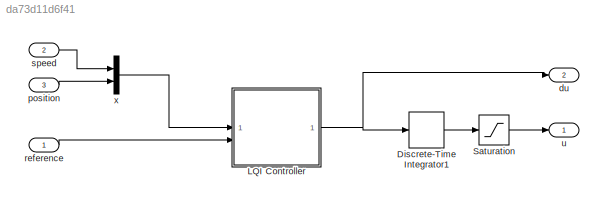
MODEL slx_da73d11d6f41
KIND model
CONFIG AbsTol = auto
CONFIG EnableMultiTasking = on
CONFIG FixedStep = auto
CONFIG MaxStep = auto
CONFIG MinStep = auto
CONFIG RelTol = 1e-3
CONFIG SampleTimeConstraint = Unconstrained
CONFIG SolverName = FixedStepAuto
CONFIG StartTime = 0.0
CONFIG StopTime = 10.0
BLOCK [DiscreteIntegrator] Discrete-Time Integrator1
  ICPrevOutput = DiscIntNeverNeededParam
  ICPrevScaledInput = DiscIntNeverNeededParam
  InitialConditionSetting = Auto
  IntegratorMethod = Accumulation: Backward Euler
  LimitOutput = on
  LowerSaturationLimit = -12
  SampleTime = -1
  UpperSaturationLimit = 12
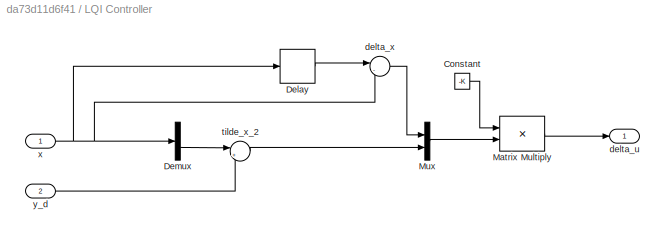
BLOCK [SubSystem] LQI Controller
BLOCK [Constant] LQI Controller/Constant
  Value = -K
  VectorParams1D = off
BLOCK [Delay] LQI Controller/Delay
  DelayLength = 1
  InitialCondition = [0;0]
  InputPortMap = u0
  SampleTime = Ts
BLOCK [Demux] LQI Controller/Demux
  Outputs = 2
BLOCK [Product] LQI Controller/Matrix Multiply
  Multiplication = Matrix(*)
BLOCK [Mux] LQI Controller/Mux
  DisplayOption = bar
  Inputs = 2
BLOCK [Outport] LQI Controller/delta_u
  SampleTime = Ts
BLOCK [Sum] LQI Controller/delta_x
  Inputs = |-+
  NameLocation = top
BLOCK [Sum] LQI Controller/tilde_x_2
  Inputs = |+-
  NameLocation = top
BLOCK [Inport] LQI Controller/x
  SampleTime = Ts
BLOCK [Inport] LQI Controller/y_d
  Port = 2
  SampleTime = Ts
BLOCK [Saturate] Saturation
  LowerLimit = -12
  UpperLimit = 12
BLOCK [Outport] du
  Port = 2
BLOCK [Inport] position
  Port = 3
BLOCK [Inport] reference
BLOCK [Inport] speed
  NameLocation = top
  Port = 2
BLOCK [Outport] u
BLOCK [Mux] x
  DisplayOption = bar
  Inputs = 2
LINE Discrete-Time Integrator1:1 -> Saturation:1
LINE LQI Controller/Constant:1 -> LQI Controller/Matrix Multiply:1
LINE LQI Controller/Delay:1 -> LQI Controller/delta_x:1
LINE LQI Controller/Demux:2 -> LQI Controller/tilde_x_2:1
LINE LQI Controller/Matrix Multiply:1 -> LQI Controller/delta_u:1
LINE LQI Controller/Mux:1 -> LQI Controller/Matrix Multiply:2
LINE LQI Controller/delta_x:1 -> LQI Controller/Mux:1
LINE LQI Controller/tilde_x_2:1 -> LQI Controller/Mux:2
NET LQI Controller/x:1 -> LQI Controller/Delay:1, LQI Controller/Demux:1, LQI Controller/delta_x:2
LINE LQI Controller/y_d:1 -> LQI Controller/tilde_x_2:2
NET LQI Controller:1 -> Discrete-Time Integrator1:1, du:1
LINE Saturation:1 -> u:1
LINE position:1 -> x:2
LINE reference:1 -> LQI Controller:2
LINE speed:1 -> x:1
LINE x:1 -> LQI Controller:1
note: NET lines group one-source signal fan-out (src -> all destinations, sorted); 1:1 wires keep LINE
